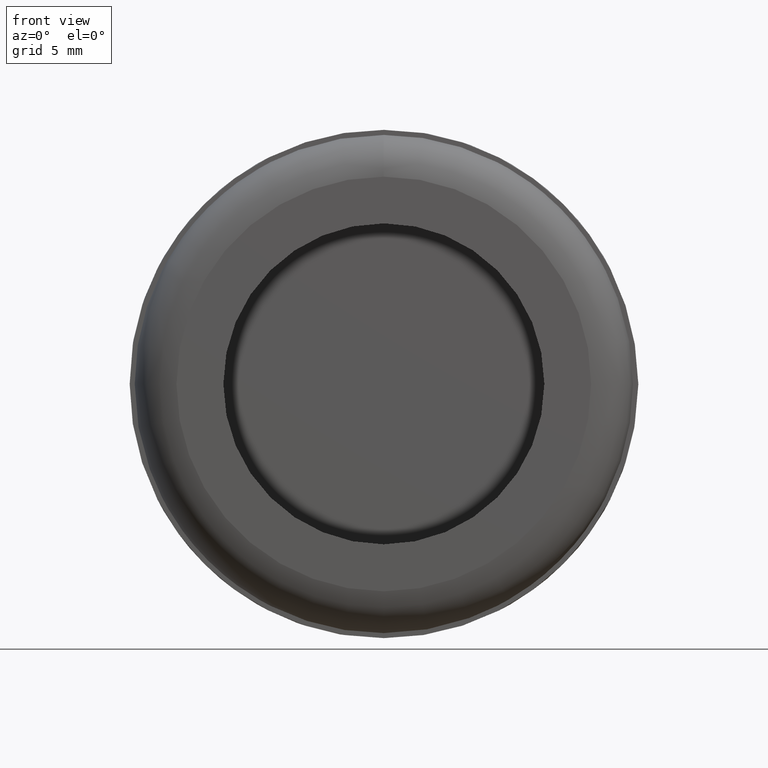
[diagram: clean part render]
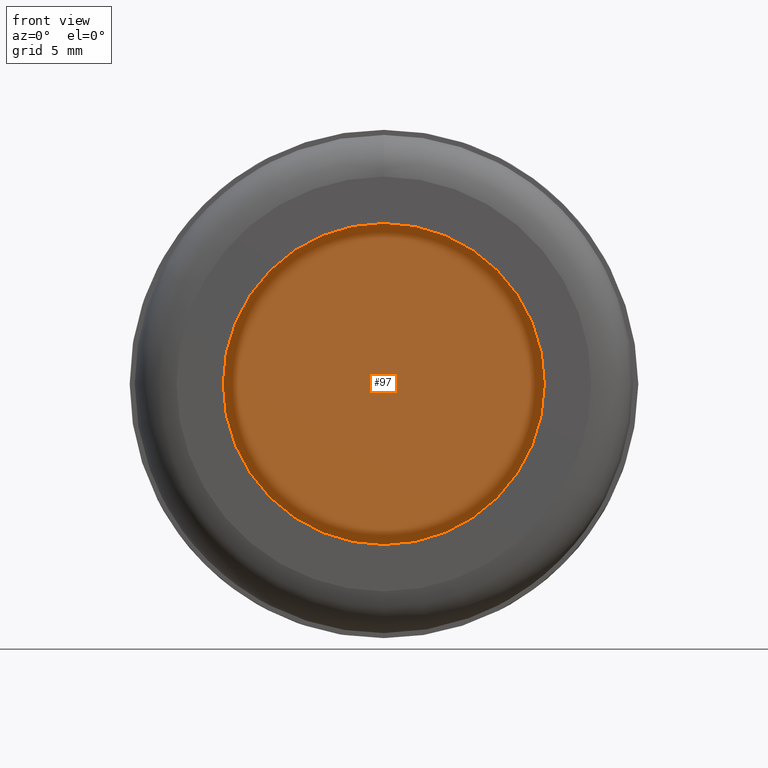
[diagram: same view with one face highlighted and labeled with its STEP entity id]
A machine part, front view. The second image highlights one B-rep face of the part: STEP entity #97.
In plain terms, the highlighted planar face has unit normal (0, 1, 0).
Its self-contained STEP definition (entity closure, byte-faithful):
#17=PLANE('',#110);
#30=FACE_OUTER_BOUND('',#40,.T.);
#40=EDGE_LOOP('',(#80));
#54=CIRCLE('',#108,12.);
#62=VERTEX_POINT('',#162);
#70=EDGE_CURVE('',#62,#62,#54,.T.);
#80=ORIENTED_EDGE('',*,*,#70,.F.);
#97=ADVANCED_FACE('',(#30),#17,.F.);
#108=AXIS2_PLACEMENT_3D('',#163,#128,#129);
#110=AXIS2_PLACEMENT_3D('',#166,#132,#133);
#128=DIRECTION('center_axis',(0.,1.,0.));
#129=DIRECTION('ref_axis',(-1.,0.,0.));
#132=DIRECTION('center_axis',(0.,1.,0.));
#133=DIRECTION('ref_axis',(0.,0.,1.));
#162=CARTESIAN_POINT('',(12.,2.,1.46957615897682E-15));
#163=CARTESIAN_POINT('Origin',(0.,2.,0.));
#166=CARTESIAN_POINT('Origin',(-7.39255249150933E-16,2.,-3.08395284618099E-16));